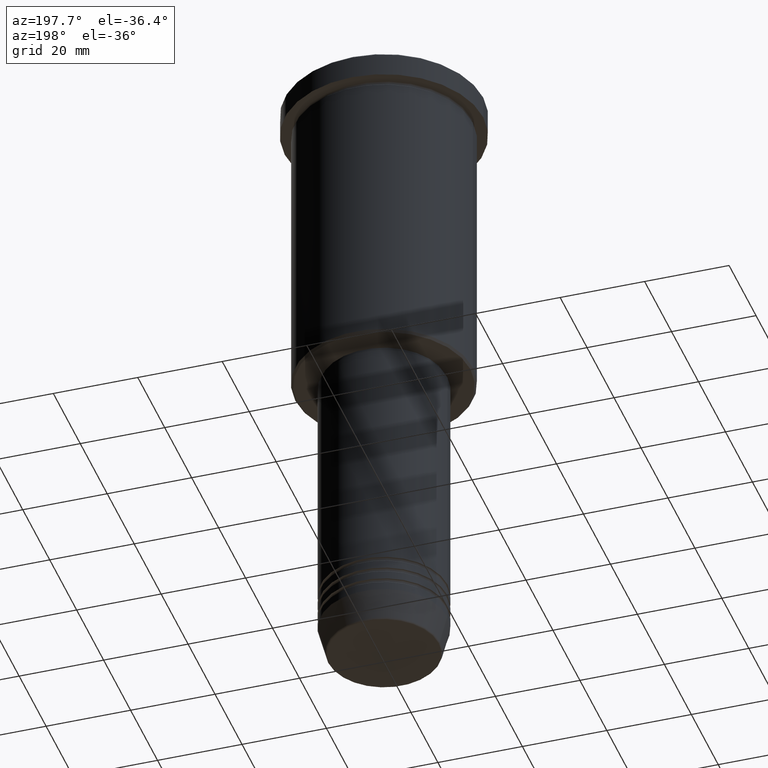
[diagram: clean part render]
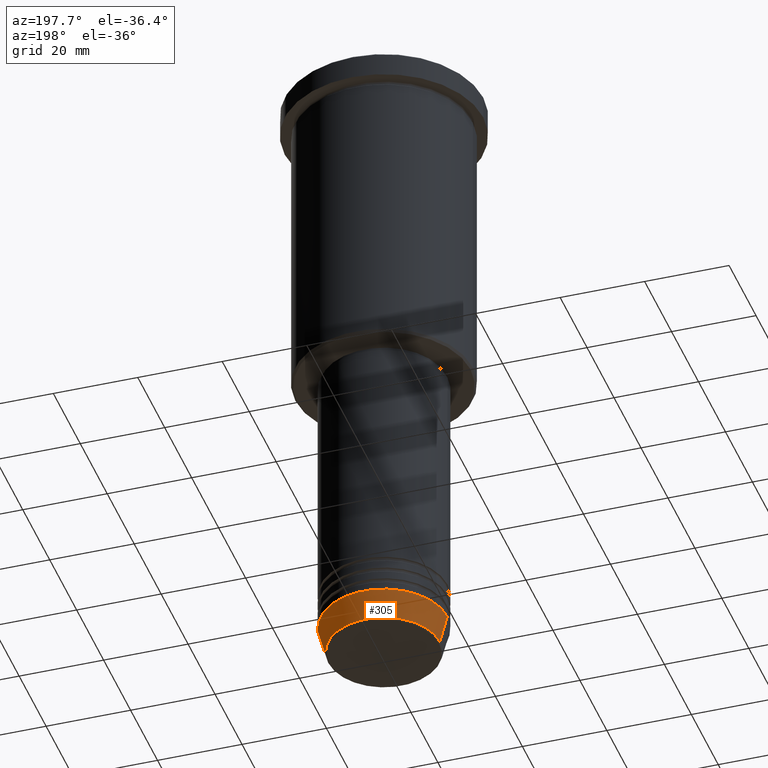
[diagram: same view with one face highlighted and labeled with its STEP entity id]
A machine part, auxiliary view. The second image highlights one B-rep face of the part: STEP entity #305.
In plain terms, the highlighted conical surface has half-angle 15 deg.
Its self-contained STEP definition (entity closure, byte-faithful):
#38 = CARTESIAN_POINT ( 'NONE',  ( 0.000000000000000000, 0.000000000000000000, -144.0000000000000000 ) ) ;
#153 = ORIENTED_EDGE ( 'NONE', *, *, #316, .T. ) ;
#157 = VERTEX_POINT ( 'NONE', #190 ) ;
#166 = DIRECTION ( 'NONE',  ( -0.2588190451025209615, 3.169619151431767406E-17, 0.9659258262890682012 ) ) ;
#190 = CARTESIAN_POINT ( 'NONE',  ( -15.00000000000000000, 1.836970198721029589E-15, -144.0000000000000000 ) ) ;
#213 = CARTESIAN_POINT ( 'NONE',  ( -15.00000000000000000, 1.836970198721029589E-15, -144.0000000000000000 ) ) ;
#220 = DIRECTION ( 'NONE',  ( 1.000000000000000000, 0.000000000000000000, 0.000000000000000000 ) ) ;
#239 = AXIS2_PLACEMENT_3D ( 'NONE', #759, #1027, #220 ) ;
#254 = AXIS2_PLACEMENT_3D ( 'NONE', #38, #633, #391 ) ;
#292 = DIRECTION ( 'NONE',  ( -0.000000000000000000, -0.000000000000000000, 1.000000000000000000 ) ) ;
#305 = ADVANCED_FACE ( 'NONE', ( #558 ), #1180, .T. ) ;
#316 = EDGE_CURVE ( 'NONE', #694, #157, #1022, .T. ) ;
#374 = DIRECTION ( 'NONE',  ( 1.000000000000000000, 0.000000000000000000, 0.000000000000000000 ) ) ;
#391 = DIRECTION ( 'NONE',  ( 1.000000000000000000, 0.000000000000000000, 0.000000000000000000 ) ) ;
#430 = EDGE_CURVE ( 'NONE', #874, #922, #453, .T. ) ;
#453 = LINE ( 'NONE', #607, #926 ) ;
#458 = CARTESIAN_POINT ( 'NONE',  ( 0.000000000000000000, 0.000000000000000000, -150.6294095225512137 ) ) ;
#479 = CIRCLE ( 'NONE', #1049, 13.22365507213720370 ) ;
#480 = CIRCLE ( 'NONE', #239, 15.00000000000000000 ) ;
#505 = CARTESIAN_POINT ( 'NONE',  ( -13.22365507213720370, 1.728200442216589175E-15, -150.6294095225512137 ) ) ;
#558 = FACE_OUTER_BOUND ( 'NONE', #1157, .T. ) ;
#607 = CARTESIAN_POINT ( 'NONE',  ( 15.00000000000000000, 0.000000000000000000, -144.0000000000000000 ) ) ;
#633 = DIRECTION ( 'NONE',  ( -0.000000000000000000, -0.000000000000000000, 1.000000000000000000 ) ) ;
#656 = ORIENTED_EDGE ( 'NONE', *, *, #920, .T. ) ;
#677 = DIRECTION ( 'NONE',  ( 0.2588190451025209615, 0.000000000000000000, 0.9659258262890682012 ) ) ;
#694 = VERTEX_POINT ( 'NONE', #505 ) ;
#727 = CARTESIAN_POINT ( 'NONE',  ( 15.00000000000000000, 0.000000000000000000, -144.0000000000000000 ) ) ;
#759 = CARTESIAN_POINT ( 'NONE',  ( 0.000000000000000000, 0.000000000000000000, -144.0000000000000000 ) ) ;
#764 = ORIENTED_EDGE ( 'NONE', *, *, #430, .F. ) ;
#874 = VERTEX_POINT ( 'NONE', #1000 ) ;
#920 = EDGE_CURVE ( 'NONE', #874, #694, #479, .T. ) ;
#922 = VERTEX_POINT ( 'NONE', #727 ) ;
#926 = VECTOR ( 'NONE', #677, 1000.000000000000000 ) ;
#1000 = CARTESIAN_POINT ( 'NONE',  ( 13.22365507213720370, 0.000000000000000000, -150.6294095225512137 ) ) ;
#1005 = VECTOR ( 'NONE', #166, 1000.000000000000000 ) ;
#1022 = LINE ( 'NONE', #213, #1005 ) ;
#1027 = DIRECTION ( 'NONE',  ( -0.000000000000000000, -0.000000000000000000, 1.000000000000000000 ) ) ;
#1049 = AXIS2_PLACEMENT_3D ( 'NONE', #458, #292, #374 ) ;
#1077 = ORIENTED_EDGE ( 'NONE', *, *, #1159, .F. ) ;
#1157 = EDGE_LOOP ( 'NONE', ( #656, #153, #1077, #764 ) ) ;
#1159 = EDGE_CURVE ( 'NONE', #922, #157, #480, .T. ) ;
#1180 = CONICAL_SURFACE ( 'NONE', #254, 15.00000000000000000, 0.2617993877991496299 ) ;